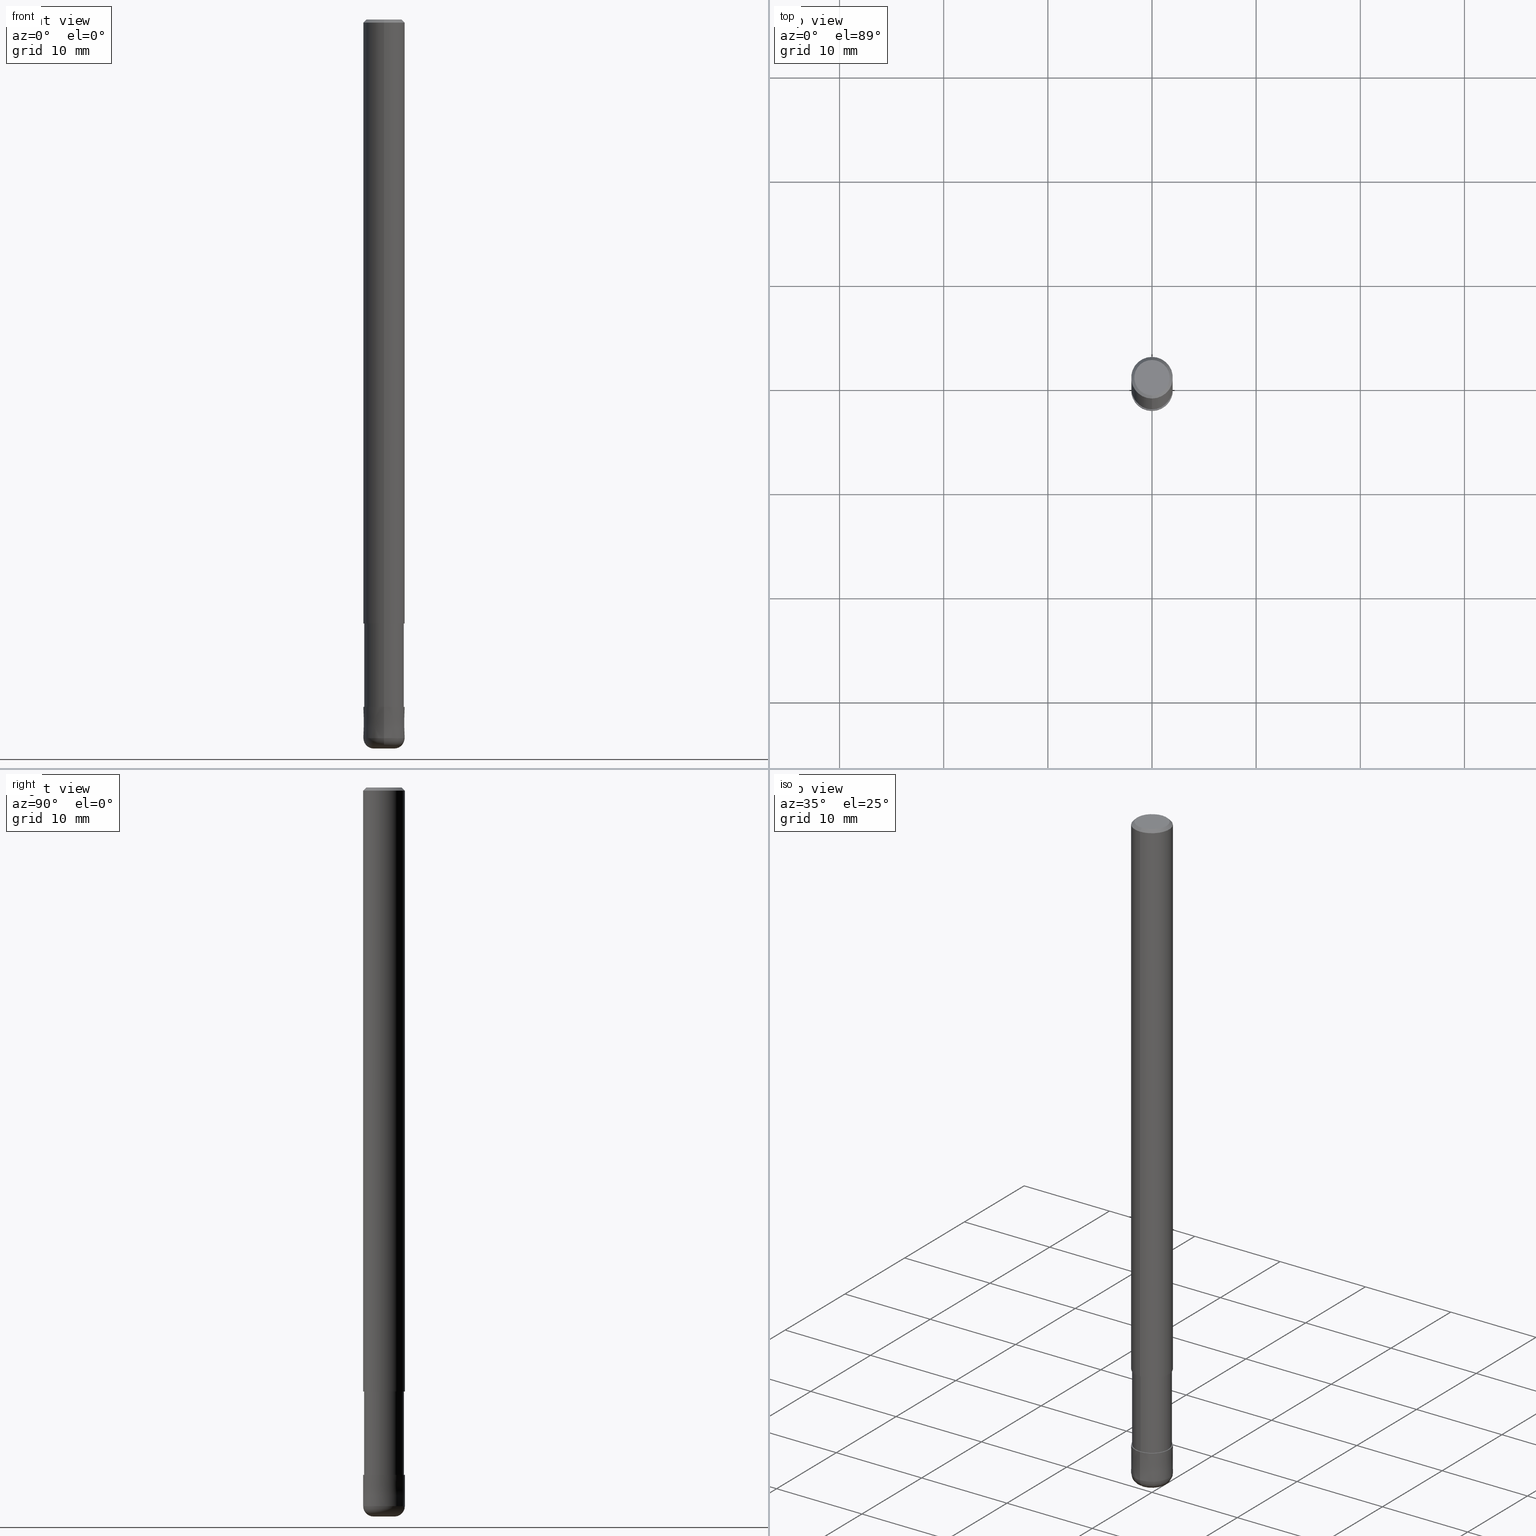
[diagram: canonical four-view strip — front | top / right | iso, engineering-drawing reading convention]
A machine part, canonical four-view strip (front | top / right | iso — engineering-drawing reading convention). The complete STEP part file that produces these views, byte-faithful:
ISO-10303-21;
HEADER;
FILE_DESCRIPTION(('no description'),'unknown implementation level');
FILE_NAME('HRRS4040-10-12-Huellk.stp','  ',('CIMSOURCE GmbH'),('CADClick - KiM GmbH - www.kimweb.de'),'unknown preprocess','ACIS','unknown authorization');
FILE_SCHEMA(('automotive_design'));
ENDSEC;
DATA;
#1=MECHANICAL_DESIGN_GEOMETRIC_PRESENTATION_REPRESENTATION(' ',(#14,#15,#16,#17,#18,#19,#20,#21,#22,#23,#24,#25,#26,#27,#28,#29,#30,#31,#32,#33,#34,#35,#36,#37,#38,#39,#40,#41,#42,#43,#44,#45,#46,#47,#48,#49,#50,#51,#52,#53,#54,#55,#56,#57,#58,#59,#60,#61,#62,#63,#64,#65,#66,#67,#68,#69,#70,#71,#72),#10);
#2=PRODUCT_DEFINITION_CONTEXT('',#73,'design');
#3=APPLICATION_PROTOCOL_DEFINITION('INTERNATIONAL STANDARD','automotive_design',1994,#73);
#4=PRODUCT_CATEGORY_RELATIONSHIP('NONE','NONE',#74,#75);
#5=SHAPE_DEFINITION_REPRESENTATION(#76,#77);
#6=PRODUCT_DEFINITION_CONTEXT('',#78,'design');
#7=APPLICATION_PROTOCOL_DEFINITION('INTERNATIONAL STANDARD','automotive_design',1994,#78);
#8=PRODUCT_CATEGORY_RELATIONSHIP('NONE','NONE',#79,#80);
#9=SHAPE_DEFINITION_REPRESENTATION(#81,#82);
#10= (GEOMETRIC_REPRESENTATION_CONTEXT(3)GLOBAL_UNCERTAINTY_ASSIGNED_CONTEXT((#85))GLOBAL_UNIT_ASSIGNED_CONTEXT((#87,#88,#89))REPRESENTATION_CONTEXT('NONE','WORKSPACE'));
#14=STYLED_ITEM('',(#91),#92);
#15=STYLED_ITEM('',(#93),#94);
#16=STYLED_ITEM('',(#95),#96);
#17=STYLED_ITEM('',(#97),#98);
#18=STYLED_ITEM('',(#99),#100);
#19=STYLED_ITEM('',(#101),#102);
#20=STYLED_ITEM('',(#103),#104);
#21=STYLED_ITEM('',(#105),#106);
#22=STYLED_ITEM('',(#107),#108);
#23=STYLED_ITEM('',(#109),#110);
#24=STYLED_ITEM('',(#111),#112);
#25=STYLED_ITEM('',(#113),#114);
#26=STYLED_ITEM('',(#115),#116);
#27=STYLED_ITEM('',(#117),#118);
#28=STYLED_ITEM('',(#119),#120);
#29=STYLED_ITEM('',(#121),#122);
#30=STYLED_ITEM('',(#123),#124);
#31=STYLED_ITEM('',(#125),#126);
#32=STYLED_ITEM('',(#127),#128);
#33=STYLED_ITEM('',(#129),#130);
#34=STYLED_ITEM('',(#131),#132);
#35=STYLED_ITEM('',(#133),#134);
#36=STYLED_ITEM('',(#135),#136);
#37=STYLED_ITEM('',(#137),#138);
#38=STYLED_ITEM('',(#139),#140);
#39=STYLED_ITEM('',(#141),#142);
#40=STYLED_ITEM('',(#143),#144);
#41=STYLED_ITEM('',(#145),#146);
#42=STYLED_ITEM('',(#147),#148);
#43=STYLED_ITEM('',(#149),#150);
#44=STYLED_ITEM('',(#151),#152);
#45=STYLED_ITEM('',(#153),#154);
#46=STYLED_ITEM('',(#155),#156);
#47=STYLED_ITEM('',(#157),#158);
#48=STYLED_ITEM('',(#159),#160);
#49=STYLED_ITEM('',(#161),#162);
#50=STYLED_ITEM('',(#163),#164);
#51=STYLED_ITEM('',(#165),#166);
#52=STYLED_ITEM('',(#167),#168);
#53=STYLED_ITEM('',(#169),#170);
#54=STYLED_ITEM('',(#171),#172);
#55=STYLED_ITEM('',(#173),#174);
#56=STYLED_ITEM('',(#175),#176);
#57=STYLED_ITEM('',(#177),#178);
#58=STYLED_ITEM('',(#179),#180);
#59=STYLED_ITEM('',(#181),#182);
#60=STYLED_ITEM('',(#183),#184);
#61=STYLED_ITEM('',(#185),#186);
#62=STYLED_ITEM('',(#187),#188);
#63=STYLED_ITEM('',(#189),#190);
#64=STYLED_ITEM('',(#191),#192);
#65=STYLED_ITEM('',(#193),#194);
#66=STYLED_ITEM('',(#195),#196);
#67=STYLED_ITEM('',(#197),#198);
#68=STYLED_ITEM('',(#199),#200);
#69=STYLED_ITEM('',(#201),#202);
#70=STYLED_ITEM('',(#203),#204);
#71=STYLED_ITEM('',(#205),#206);
#72=STYLED_ITEM('',(#207),#208);
#73=APPLICATION_CONTEXT(' ');
#74=PRODUCT_CATEGORY('part','NONE');
#75=PRODUCT_RELATED_PRODUCT_CATEGORY('detail',' ',(#209));
#76=PRODUCT_DEFINITION_SHAPE('NONE','NONE',#210);
#77=ADVANCED_BREP_SHAPE_REPRESENTATION('1',(#152,#211),#10);
#78=APPLICATION_CONTEXT(' ');
#79=PRODUCT_CATEGORY('part','NONE');
#80=PRODUCT_RELATED_PRODUCT_CATEGORY('detail',' ',(#212));
#81=PRODUCT_DEFINITION_SHAPE('NONE','NONE',#213);
#82=ADVANCED_BREP_SHAPE_REPRESENTATION('2',(#164,#214),#10);
#85=UNCERTAINTY_MEASURE_WITH_UNIT(LENGTH_MEASURE(1.0E-006),#87,'','');
#87= (CONVERSION_BASED_UNIT('MILLIMETRE',#217)LENGTH_UNIT()NAMED_UNIT(#220));
#88= (NAMED_UNIT(#222)PLANE_ANGLE_UNIT()SI_UNIT($,.RADIAN.));
#89= (NAMED_UNIT(#222)SOLID_ANGLE_UNIT()SI_UNIT($,.STERADIAN.));
#91=PRESENTATION_STYLE_ASSIGNMENT((#228));
#92=EDGE_CURVE('',#112,#106,#229,.T.);
#93=PRESENTATION_STYLE_ASSIGNMENT((#230));
#94=EDGE_CURVE('',#174,#104,#231,.T.);
#95=PRESENTATION_STYLE_ASSIGNMENT((#232));
#96=VERTEX_POINT('',#233);
#97=PRESENTATION_STYLE_ASSIGNMENT((#234));
#98=VERTEX_POINT('',#235);
#99=PRESENTATION_STYLE_ASSIGNMENT((#236));
#100=ADVANCED_FACE('',(#237),#238,.T.);
#101=PRESENTATION_STYLE_ASSIGNMENT((#239));
#102=EDGE_CURVE('',#106,#112,#240,.T.);
#103=PRESENTATION_STYLE_ASSIGNMENT((#241));
#104=VERTEX_POINT('',#242);
#105=PRESENTATION_STYLE_ASSIGNMENT((#243));
#106=VERTEX_POINT('',#244);
#107=PRESENTATION_STYLE_ASSIGNMENT((#245));
#108=ADVANCED_FACE('',(#246),#247,.T.);
#109=PRESENTATION_STYLE_ASSIGNMENT((#248));
#110=ADVANCED_FACE('',(#249),#250,.T.);
#111=PRESENTATION_STYLE_ASSIGNMENT((#251));
#112=VERTEX_POINT('',#252);
#113=PRESENTATION_STYLE_ASSIGNMENT((#253));
#114=ADVANCED_FACE('',(#254),#255,.T.);
#115=PRESENTATION_STYLE_ASSIGNMENT((#256));
#116=ADVANCED_FACE('',(#257),#258,.T.);
#117=PRESENTATION_STYLE_ASSIGNMENT((#259));
#118=ADVANCED_FACE('',(#260),#261,.T.);
#119=PRESENTATION_STYLE_ASSIGNMENT((#262));
#120=VERTEX_POINT('',#263);
#121=PRESENTATION_STYLE_ASSIGNMENT((#264));
#122=EDGE_CURVE('',#174,#180,#265,.T.);
#123=PRESENTATION_STYLE_ASSIGNMENT((#266));
#124=EDGE_CURVE('',#106,#130,#267,.T.);
#125=PRESENTATION_STYLE_ASSIGNMENT((#268));
#126=VERTEX_POINT('',#269);
#127=PRESENTATION_STYLE_ASSIGNMENT((#270));
#128=EDGE_CURVE('',#202,#130,#271,.T.);
#129=PRESENTATION_STYLE_ASSIGNMENT((#272));
#130=VERTEX_POINT('',#273);
#131=PRESENTATION_STYLE_ASSIGNMENT((#274));
#132=EDGE_CURVE('',#162,#202,#275,.T.);
#133=PRESENTATION_STYLE_ASSIGNMENT((#276));
#134=EDGE_CURVE('',#194,#120,#277,.T.);
#135=PRESENTATION_STYLE_ASSIGNMENT((#278));
#136=EDGE_CURVE('',#98,#96,#279,.T.);
#137=PRESENTATION_STYLE_ASSIGNMENT((#280));
#138=EDGE_CURVE('',#168,#174,#281,.T.);
#139=PRESENTATION_STYLE_ASSIGNMENT((#282));
#140=ADVANCED_FACE('',(#283),#284,.T.);
#141=PRESENTATION_STYLE_ASSIGNMENT((#285));
#142=EDGE_CURVE('',#194,#96,#286,.T.);
#143=PRESENTATION_STYLE_ASSIGNMENT((#287));
#144=EDGE_CURVE('',#198,#104,#288,.T.);
#145=PRESENTATION_STYLE_ASSIGNMENT((#289));
#146=EDGE_CURVE('',#104,#198,#290,.T.);
#147=PRESENTATION_STYLE_ASSIGNMENT((#291));
#148=EDGE_CURVE('',#96,#98,#292,.T.);
#149=PRESENTATION_STYLE_ASSIGNMENT((#293));
#150=EDGE_CURVE('',#180,#174,#294,.T.);
#151=PRESENTATION_STYLE_ASSIGNMENT((#295));
#152=MANIFOLD_SOLID_BREP('1',#296);
#153=PRESENTATION_STYLE_ASSIGNMENT((#297));
#154=EDGE_CURVE('',#198,#180,#298,.T.);
#155=PRESENTATION_STYLE_ASSIGNMENT((#299));
#156=EDGE_CURVE('',#188,#168,#300,.T.);
#157=PRESENTATION_STYLE_ASSIGNMENT((#301));
#158=ADVANCED_FACE('',(#302),#303,.T.);
#159=PRESENTATION_STYLE_ASSIGNMENT((#304));
#160=ADVANCED_FACE('',(#305),#306,.T.);
#161=PRESENTATION_STYLE_ASSIGNMENT((#307));
#162=VERTEX_POINT('',#308);
#163=PRESENTATION_STYLE_ASSIGNMENT((#309));
#164=MANIFOLD_SOLID_BREP('2',#310);
#165=PRESENTATION_STYLE_ASSIGNMENT((#311));
#166=EDGE_CURVE('',#180,#188,#312,.T.);
#167=PRESENTATION_STYLE_ASSIGNMENT((#313));
#168=VERTEX_POINT('',#314);
#169=PRESENTATION_STYLE_ASSIGNMENT((#315));
#170=ADVANCED_FACE('',(#316),#317,.T.);
#171=PRESENTATION_STYLE_ASSIGNMENT((#318));
#172=EDGE_CURVE('',#126,#112,#319,.T.);
#173=PRESENTATION_STYLE_ASSIGNMENT((#320));
#174=VERTEX_POINT('',#321);
#175=PRESENTATION_STYLE_ASSIGNMENT((#322));
#176=EDGE_CURVE('',#126,#162,#323,.T.);
#177=PRESENTATION_STYLE_ASSIGNMENT((#324));
#178=ADVANCED_FACE('',(#325),#326,.T.);
#179=PRESENTATION_STYLE_ASSIGNMENT((#327));
#180=VERTEX_POINT('',#328);
#181=PRESENTATION_STYLE_ASSIGNMENT((#329));
#182=EDGE_CURVE('',#126,#130,#330,.T.);
#183=PRESENTATION_STYLE_ASSIGNMENT((#331));
#184=EDGE_CURVE('',#202,#162,#332,.T.);
#185=PRESENTATION_STYLE_ASSIGNMENT((#333));
#186=ADVANCED_FACE('',(#334,#335),#336,.T.);
#187=PRESENTATION_STYLE_ASSIGNMENT((#337));
#188=VERTEX_POINT('',#338);
#189=PRESENTATION_STYLE_ASSIGNMENT((#339));
#190=EDGE_CURVE('',#130,#126,#340,.T.);
#191=PRESENTATION_STYLE_ASSIGNMENT((#341));
#192=ADVANCED_FACE('',(#342),#343,.T.);
#193=PRESENTATION_STYLE_ASSIGNMENT((#344));
#194=VERTEX_POINT('',#345);
#195=PRESENTATION_STYLE_ASSIGNMENT((#346));
#196=EDGE_CURVE('',#120,#194,#347,.T.);
#197=PRESENTATION_STYLE_ASSIGNMENT((#348));
#198=VERTEX_POINT('',#349);
#199=PRESENTATION_STYLE_ASSIGNMENT((#350));
#200=ADVANCED_FACE('',(#351),#352,.T.);
#201=PRESENTATION_STYLE_ASSIGNMENT((#353));
#202=VERTEX_POINT('',#354);
#203=PRESENTATION_STYLE_ASSIGNMENT((#355));
#204=ADVANCED_FACE('',(#356),#357,.T.);
#205=PRESENTATION_STYLE_ASSIGNMENT((#358));
#206=EDGE_CURVE('',#98,#120,#359,.T.);
#207=PRESENTATION_STYLE_ASSIGNMENT((#360));
#208=EDGE_CURVE('',#168,#188,#361,.T.);
#209=PRODUCT('1','1','PART-1-DESC',(#362));
#210=PRODUCT_DEFINITION('NONE','NONE',#363,#2);
#211=AXIS2_PLACEMENT_3D('',#364,#365,#366);
#212=PRODUCT('2','2','PART-2-DESC',(#367));
#213=PRODUCT_DEFINITION('NONE','NONE',#368,#6);
#214=AXIS2_PLACEMENT_3D('',#369,#370,#371);
#217=LENGTH_MEASURE_WITH_UNIT(LENGTH_MEASURE(1.0),#372);
#220=DIMENSIONAL_EXPONENTS(1.0,0.0,0.0,0.0,0.0,0.0,0.0);
#222=DIMENSIONAL_EXPONENTS(0.0,0.0,0.0,0.0,0.0,0.0,0.0);
#228=CURVE_STYLE('',#373,POSITIVE_LENGTH_MEASURE(1.0E-006),#374);
#229=CIRCLE('',#375,1.9999);
#230=CURVE_STYLE('',#376,POSITIVE_LENGTH_MEASURE(1.0E-006),#377);
#231=LINE('',#378,#379);
#232=POINT_STYLE(' ',#380,POSITIVE_LENGTH_MEASURE(1.0E-006),#381);
#233=CARTESIAN_POINT('',(0.0,1.90995,-66.0));
#234=POINT_STYLE(' ',#382,POSITIVE_LENGTH_MEASURE(1.0E-006),#383);
#235=CARTESIAN_POINT('',(2.33893690548305E-016,-1.90995,-66.0));
#236=SURFACE_STYLE_USAGE(.BOTH.,#384);
#237=FACE_OUTER_BOUND('',#385,.T.);
#238=CYLINDRICAL_SURFACE('',#386,2.0);
#239=CURVE_STYLE('',#387,POSITIVE_LENGTH_MEASURE(1.0E-006),#388);
#240=CIRCLE('',#389,1.9999);
#241=POINT_STYLE(' ',#390,POSITIVE_LENGTH_MEASURE(1.0E-006),#391);
#242=CARTESIAN_POINT('',(2.08183080149804E-016,-1.7,0.0));
#243=POINT_STYLE(' ',#392,POSITIVE_LENGTH_MEASURE(1.0E-006),#393);
#244=CARTESIAN_POINT('',(0.0,1.9999,-66.0));
#245=SURFACE_STYLE_USAGE(.BOTH.,#394);
#246=FACE_OUTER_BOUND('',#395,.T.);
#247=CONICAL_SURFACE('',#396,1.85,0.785398163397453);
#248=SURFACE_STYLE_USAGE(.BOTH.,#397);
#249=FACE_OUTER_BOUND('',#398,.T.);
#250=CYLINDRICAL_SURFACE('',#399,1.90995);
#251=POINT_STYLE(' ',#400,POSITIVE_LENGTH_MEASURE(1.0E-006),#401);
#252=CARTESIAN_POINT('',(2.44909024700937E-016,-1.9999,-66.0));
#253=SURFACE_STYLE_USAGE(.BOTH.,#402);
#254=FACE_OUTER_BOUND('',#403,.T.);
#255=CONICAL_SURFACE('',#404,1.85,0.785398163397453);
#256=SURFACE_STYLE_USAGE(.BOTH.,#405);
#257=FACE_OUTER_BOUND('',#406,.T.);
#258=PLANE('',#407);
#259=SURFACE_STYLE_USAGE(.BOTH.,#408);
#260=FACE_OUTER_BOUND('',#409,.T.);
#261=CYLINDRICAL_SURFACE('',#410,1.90995);
#262=POINT_STYLE(' ',#411,POSITIVE_LENGTH_MEASURE(1.0E-006),#412);
#263=CARTESIAN_POINT('',(2.33893690548305E-016,-1.90995,-58.0));
#264=CURVE_STYLE('',#413,POSITIVE_LENGTH_MEASURE(1.0E-006),#414);
#265=CIRCLE('',#415,2.0);
#266=CURVE_STYLE('',#416,POSITIVE_LENGTH_MEASURE(1.0E-006),#417);
#267=LINE('',#418,#419);
#268=POINT_STYLE(' ',#420,POSITIVE_LENGTH_MEASURE(1.0E-006),#421);
#269=CARTESIAN_POINT('',(2.44921270764475E-016,-2.0,-69.0));
#270=CURVE_STYLE('',#422,POSITIVE_LENGTH_MEASURE(1.0E-006),#423);
#271=CIRCLE('',#424,1.0);
#272=POINT_STYLE(' ',#425,POSITIVE_LENGTH_MEASURE(1.0E-006),#426);
#273=CARTESIAN_POINT('',(0.0,2.0,-69.0));
#274=CURVE_STYLE('',#427,POSITIVE_LENGTH_MEASURE(1.0E-006),#428);
#275=CIRCLE('',#429,1.0);
#276=CURVE_STYLE('',#430,POSITIVE_LENGTH_MEASURE(1.0E-006),#431);
#277=CIRCLE('',#432,1.90995);
#278=CURVE_STYLE('',#433,POSITIVE_LENGTH_MEASURE(1.0E-006),#434);
#279=CIRCLE('',#435,1.90995);
#280=CURVE_STYLE('',#436,POSITIVE_LENGTH_MEASURE(1.0E-006),#437);
#281=LINE('',#438,#439);
#282=SURFACE_STYLE_USAGE(.BOTH.,#440);
#283=FACE_OUTER_BOUND('',#441,.T.);
#284=PLANE('',#442);
#285=CURVE_STYLE('',#443,POSITIVE_LENGTH_MEASURE(1.0E-006),#444);
#286=LINE('',#445,#446);
#287=CURVE_STYLE('',#447,POSITIVE_LENGTH_MEASURE(1.0E-006),#448);
#288=CIRCLE('',#449,1.7);
#289=CURVE_STYLE('',#450,POSITIVE_LENGTH_MEASURE(1.0E-006),#451);
#290=CIRCLE('',#452,1.7);
#291=CURVE_STYLE('',#453,POSITIVE_LENGTH_MEASURE(1.0E-006),#454);
#292=CIRCLE('',#455,1.90995);
#293=CURVE_STYLE('',#456,POSITIVE_LENGTH_MEASURE(1.0E-006),#457);
#294=CIRCLE('',#458,2.0);
#295=SURFACE_STYLE_USAGE(.BOTH.,#459);
#296=CLOSED_SHELL('',(#118,#100,#108,#186,#116,#114,#178,#110,#192));
#297=CURVE_STYLE('',#460,POSITIVE_LENGTH_MEASURE(1.0E-006),#461);
#298=LINE('',#462,#463);
#299=CURVE_STYLE('',#464,POSITIVE_LENGTH_MEASURE(1.0E-006),#465);
#300=CIRCLE('',#466,2.0);
#301=SURFACE_STYLE_USAGE(.BOTH.,#467);
#302=FACE_OUTER_BOUND('',#468,.T.);
#303=TOROIDAL_SURFACE('',#469,0.999999999999999,1.0);
#304=SURFACE_STYLE_USAGE(.BOTH.,#470);
#305=FACE_OUTER_BOUND('',#471,.T.);
#306=PLANE('',#472);
#307=POINT_STYLE(' ',#473,POSITIVE_LENGTH_MEASURE(1.0E-006),#474);
#308=CARTESIAN_POINT('',(1.22460635382238E-016,-1.0,-70.0));
#309=SURFACE_STYLE_USAGE(.BOTH.,#475);
#310=CLOSED_SHELL('',(#158,#170,#160,#200,#204,#140));
#311=CURVE_STYLE('',#476,POSITIVE_LENGTH_MEASURE(1.0E-006),#477);
#312=LINE('',#478,#479);
#313=POINT_STYLE(' ',#480,POSITIVE_LENGTH_MEASURE(1.0E-006),#481);
#314=CARTESIAN_POINT('',(2.44921270764475E-016,-2.0,-58.0));
#315=SURFACE_STYLE_USAGE(.BOTH.,#482);
#316=FACE_OUTER_BOUND('',#483,.T.);
#317=CONICAL_SURFACE('',#484,1.99995,3.3333333320984E-005);
#318=CURVE_STYLE('',#485,POSITIVE_LENGTH_MEASURE(1.0E-006),#486);
#319=LINE('',#487,#488);
#320=POINT_STYLE(' ',#489,POSITIVE_LENGTH_MEASURE(1.0E-006),#490);
#321=CARTESIAN_POINT('',(2.44921270764475E-016,-2.0,-0.299999999999997));
#322=CURVE_STYLE('',#491,POSITIVE_LENGTH_MEASURE(1.0E-006),#492);
#323=CIRCLE('',#493,1.0);
#324=SURFACE_STYLE_USAGE(.BOTH.,#494);
#325=FACE_OUTER_BOUND('',#495,.T.);
#326=CYLINDRICAL_SURFACE('',#496,2.0);
#327=POINT_STYLE(' ',#497,POSITIVE_LENGTH_MEASURE(1.0E-006),#498);
#328=CARTESIAN_POINT('',(0.0,2.0,-0.299999999999997));
#329=CURVE_STYLE('',#499,POSITIVE_LENGTH_MEASURE(1.0E-006),#500);
#330=CIRCLE('',#501,2.0);
#331=CURVE_STYLE('',#502,POSITIVE_LENGTH_MEASURE(1.0E-006),#503);
#332=CIRCLE('',#504,1.0);
#333=SURFACE_STYLE_USAGE(.BOTH.,#505);
#334=FACE_OUTER_BOUND('',#506,.T.);
#335=FACE_BOUND('',#507,.T.);
#336=PLANE('',#508);
#337=POINT_STYLE(' ',#509,POSITIVE_LENGTH_MEASURE(1.0E-006),#510);
#338=CARTESIAN_POINT('',(0.0,2.0,-58.0));
#339=CURVE_STYLE('',#511,POSITIVE_LENGTH_MEASURE(1.0E-006),#512);
#340=CIRCLE('',#513,2.0);
#341=SURFACE_STYLE_USAGE(.BOTH.,#514);
#342=FACE_OUTER_BOUND('',#515,.T.);
#343=PLANE('',#516);
#344=POINT_STYLE(' ',#517,POSITIVE_LENGTH_MEASURE(1.0E-006),#518);
#345=CARTESIAN_POINT('',(0.0,1.90995,-58.0));
#346=CURVE_STYLE('',#519,POSITIVE_LENGTH_MEASURE(1.0E-006),#520);
#347=CIRCLE('',#521,1.90995);
#348=POINT_STYLE(' ',#522,POSITIVE_LENGTH_MEASURE(1.0E-006),#523);
#349=CARTESIAN_POINT('',(0.0,1.7,0.0));
#350=SURFACE_STYLE_USAGE(.BOTH.,#524);
#351=FACE_OUTER_BOUND('',#525,.T.);
#352=CONICAL_SURFACE('',#526,1.99995,3.3333333320984E-005);
#353=POINT_STYLE(' ',#527,POSITIVE_LENGTH_MEASURE(1.0E-006),#528);
#354=CARTESIAN_POINT('',(0.0,1.0,-70.0));
#355=SURFACE_STYLE_USAGE(.BOTH.,#529);
#356=FACE_OUTER_BOUND('',#530,.T.);
#357=TOROIDAL_SURFACE('',#531,0.999999999999999,1.0);
#358=CURVE_STYLE('',#532,POSITIVE_LENGTH_MEASURE(1.0E-006),#533);
#359=LINE('',#534,#535);
#360=CURVE_STYLE('',#536,POSITIVE_LENGTH_MEASURE(1.0E-006),#537);
#361=CIRCLE('',#538,2.0);
#362=PRODUCT_CONTEXT('',#73,'mechanical');
#363=PRODUCT_DEFINITION_FORMATION_WITH_SPECIFIED_SOURCE(' ','NONE',#209,.NOT_KNOWN.);
#364=CARTESIAN_POINT('',(0.0,0.0,0.0));
#365=DIRECTION('',(0.0,0.0,1.0));
#366=DIRECTION('',(1.0,0.0,0.0));
#367=PRODUCT_CONTEXT('',#78,'mechanical');
#368=PRODUCT_DEFINITION_FORMATION_WITH_SPECIFIED_SOURCE(' ','NONE',#212,.NOT_KNOWN.);
#369=CARTESIAN_POINT('',(0.0,0.0,0.0));
#370=DIRECTION('',(0.0,0.0,1.0));
#371=DIRECTION('',(1.0,0.0,0.0));
#372= (NAMED_UNIT(#220)LENGTH_UNIT()SI_UNIT(.MILLI.,.METRE.));
#373=DRAUGHTING_PRE_DEFINED_CURVE_FONT('continuous');
#374=COLOUR_RGB('',0.800000011920929,0.800000011920929,0.800000011920929);
#375=AXIS2_PLACEMENT_3D('',#540,#541,#542);
#376=DRAUGHTING_PRE_DEFINED_CURVE_FONT('continuous');
#377=COLOUR_RGB('',0.498039215803146,0.498039215803146,0.498039215803146);
#378=CARTESIAN_POINT('',(2.2655217545714E-016,-1.85,-0.149999999999999));
#379=VECTOR('',#543,1.0);
#380=PRE_DEFINED_MARKER('');
#381=COLOUR_RGB('',0.498039215803146,0.498039215803146,0.498039215803146);
#382=PRE_DEFINED_MARKER('');
#383=COLOUR_RGB('',0.498039215803146,0.498039215803146,0.498039215803146);
#384=SURFACE_SIDE_STYLE('',(#544));
#385=EDGE_LOOP('',(#545,#546,#547,#548));
#386=AXIS2_PLACEMENT_3D('',#549,#550,#551);
#387=DRAUGHTING_PRE_DEFINED_CURVE_FONT('continuous');
#388=COLOUR_RGB('',0.800000011920929,0.800000011920929,0.800000011920929);
#389=AXIS2_PLACEMENT_3D('',#552,#553,#554);
#390=PRE_DEFINED_MARKER('');
#391=COLOUR_RGB('',0.498039215803146,0.498039215803146,0.498039215803146);
#392=PRE_DEFINED_MARKER('');
#393=COLOUR_RGB('',0.800000011920929,0.800000011920929,0.800000011920929);
#394=SURFACE_SIDE_STYLE('',(#555));
#395=EDGE_LOOP('',(#556,#557,#558,#559));
#396=AXIS2_PLACEMENT_3D('',#560,#561,#562);
#397=SURFACE_SIDE_STYLE('',(#563));
#398=EDGE_LOOP('',(#564,#565,#566,#567));
#399=AXIS2_PLACEMENT_3D('',#568,#569,#570);
#400=PRE_DEFINED_MARKER('');
#401=COLOUR_RGB('',0.800000011920929,0.800000011920929,0.800000011920929);
#402=SURFACE_SIDE_STYLE('',(#571));
#403=EDGE_LOOP('',(#572,#573,#574,#575));
#404=AXIS2_PLACEMENT_3D('',#576,#577,#578);
#405=SURFACE_SIDE_STYLE('',(#579));
#406=EDGE_LOOP('',(#580,#581));
#407=AXIS2_PLACEMENT_3D('',#582,#583,#584);
#408=SURFACE_SIDE_STYLE('',(#585));
#409=EDGE_LOOP('',(#586,#587,#588,#589));
#410=AXIS2_PLACEMENT_3D('',#590,#591,#592);
#411=PRE_DEFINED_MARKER('');
#412=COLOUR_RGB('',0.498039215803146,0.498039215803146,0.498039215803146);
#413=DRAUGHTING_PRE_DEFINED_CURVE_FONT('continuous');
#414=COLOUR_RGB('',0.498039215803146,0.498039215803146,0.498039215803146);
#415=AXIS2_PLACEMENT_3D('',#593,#594,#595);
#416=DRAUGHTING_PRE_DEFINED_CURVE_FONT('continuous');
#417=COLOUR_RGB('',0.800000011920929,0.800000011920929,0.800000011920929);
#418=CARTESIAN_POINT('',(-2.44915147732706E-016,1.99995,-67.5));
#419=VECTOR('',#596,1.0);
#420=PRE_DEFINED_MARKER('');
#421=COLOUR_RGB('',0.800000011920929,0.800000011920929,0.800000011920929);
#422=DRAUGHTING_PRE_DEFINED_CURVE_FONT('continuous');
#423=COLOUR_RGB('',0.800000011920929,0.800000011920929,0.800000011920929);
#424=AXIS2_PLACEMENT_3D('',#597,#598,#599);
#425=PRE_DEFINED_MARKER('');
#426=COLOUR_RGB('',0.800000011920929,0.800000011920929,0.800000011920929);
#427=DRAUGHTING_PRE_DEFINED_CURVE_FONT('continuous');
#428=COLOUR_RGB('',0.800000011920929,0.800000011920929,0.800000011920929);
#429=AXIS2_PLACEMENT_3D('',#600,#601,#602);
#430=DRAUGHTING_PRE_DEFINED_CURVE_FONT('continuous');
#431=COLOUR_RGB('',0.498039215803146,0.498039215803146,0.498039215803146);
#432=AXIS2_PLACEMENT_3D('',#603,#604,#605);
#433=DRAUGHTING_PRE_DEFINED_CURVE_FONT('continuous');
#434=COLOUR_RGB('',0.498039215803146,0.498039215803146,0.498039215803146);
#435=AXIS2_PLACEMENT_3D('',#606,#607,#608);
#436=DRAUGHTING_PRE_DEFINED_CURVE_FONT('continuous');
#437=COLOUR_RGB('',0.498039215803146,0.498039215803146,0.498039215803146);
#438=CARTESIAN_POINT('',(2.44921270764475E-016,-2.0,-29.15));
#439=VECTOR('',#609,1.0);
#440=SURFACE_SIDE_STYLE('',(#610));
#441=EDGE_LOOP('',(#611,#612));
#442=AXIS2_PLACEMENT_3D('',#613,#614,#615);
#443=DRAUGHTING_PRE_DEFINED_CURVE_FONT('continuous');
#444=COLOUR_RGB('',0.498039215803146,0.498039215803146,0.498039215803146);
#445=CARTESIAN_POINT('',(-2.33893690548305E-016,1.90995,-62.0));
#446=VECTOR('',#616,1.0);
#447=DRAUGHTING_PRE_DEFINED_CURVE_FONT('continuous');
#448=COLOUR_RGB('',0.498039215803146,0.498039215803146,0.498039215803146);
#449=AXIS2_PLACEMENT_3D('',#617,#618,#619);
#450=DRAUGHTING_PRE_DEFINED_CURVE_FONT('continuous');
#451=COLOUR_RGB('',0.498039215803146,0.498039215803146,0.498039215803146);
#452=AXIS2_PLACEMENT_3D('',#620,#621,#622);
#453=DRAUGHTING_PRE_DEFINED_CURVE_FONT('continuous');
#454=COLOUR_RGB('',0.498039215803146,0.498039215803146,0.498039215803146);
#455=AXIS2_PLACEMENT_3D('',#623,#624,#625);
#456=DRAUGHTING_PRE_DEFINED_CURVE_FONT('continuous');
#457=COLOUR_RGB('',0.498039215803146,0.498039215803146,0.498039215803146);
#458=AXIS2_PLACEMENT_3D('',#626,#627,#628);
#459=SURFACE_SIDE_STYLE('',(#629));
#460=DRAUGHTING_PRE_DEFINED_CURVE_FONT('continuous');
#461=COLOUR_RGB('',0.498039215803146,0.498039215803146,0.498039215803146);
#462=CARTESIAN_POINT('',(-2.2655217545714E-016,1.85,-0.149999999999999));
#463=VECTOR('',#630,1.0);
#464=DRAUGHTING_PRE_DEFINED_CURVE_FONT('continuous');
#465=COLOUR_RGB('',0.498039215803146,0.498039215803146,0.498039215803146);
#466=AXIS2_PLACEMENT_3D('',#631,#632,#633);
#467=SURFACE_SIDE_STYLE('',(#634));
#468=EDGE_LOOP('',(#635,#636,#637,#638));
#469=AXIS2_PLACEMENT_3D('',#639,#640,#641);
#470=SURFACE_SIDE_STYLE('',(#642));
#471=EDGE_LOOP('',(#643,#644));
#472=AXIS2_PLACEMENT_3D('',#645,#646,#647);
#473=PRE_DEFINED_MARKER('');
#474=COLOUR_RGB('',0.800000011920929,0.800000011920929,0.800000011920929);
#475=SURFACE_SIDE_STYLE('',(#648));
#476=DRAUGHTING_PRE_DEFINED_CURVE_FONT('continuous');
#477=COLOUR_RGB('',0.498039215803146,0.498039215803146,0.498039215803146);
#478=CARTESIAN_POINT('',(-2.44921270764475E-016,2.0,-29.15));
#479=VECTOR('',#649,1.0);
#480=PRE_DEFINED_MARKER('');
#481=COLOUR_RGB('',0.498039215803146,0.498039215803146,0.498039215803146);
#482=SURFACE_SIDE_STYLE('',(#650));
#483=EDGE_LOOP('',(#651,#652,#653,#654));
#484=AXIS2_PLACEMENT_3D('',#655,#656,#657);
#485=DRAUGHTING_PRE_DEFINED_CURVE_FONT('continuous');
#486=COLOUR_RGB('',0.800000011920929,0.800000011920929,0.800000011920929);
#487=CARTESIAN_POINT('',(2.44915147732706E-016,-1.99995,-67.5));
#488=VECTOR('',#658,1.0);
#489=PRE_DEFINED_MARKER('');
#490=COLOUR_RGB('',0.498039215803146,0.498039215803146,0.498039215803146);
#491=DRAUGHTING_PRE_DEFINED_CURVE_FONT('continuous');
#492=COLOUR_RGB('',0.800000011920929,0.800000011920929,0.800000011920929);
#493=AXIS2_PLACEMENT_3D('',#659,#660,#661);
#494=SURFACE_SIDE_STYLE('',(#662));
#495=EDGE_LOOP('',(#663,#664,#665,#666));
#496=AXIS2_PLACEMENT_3D('',#667,#668,#669);
#497=PRE_DEFINED_MARKER('');
#498=COLOUR_RGB('',0.498039215803146,0.498039215803146,0.498039215803146);
#499=DRAUGHTING_PRE_DEFINED_CURVE_FONT('continuous');
#500=COLOUR_RGB('',0.800000011920929,0.800000011920929,0.800000011920929);
#501=AXIS2_PLACEMENT_3D('',#670,#671,#672);
#502=DRAUGHTING_PRE_DEFINED_CURVE_FONT('continuous');
#503=COLOUR_RGB('',0.800000011920929,0.800000011920929,0.800000011920929);
#504=AXIS2_PLACEMENT_3D('',#673,#674,#675);
#505=SURFACE_SIDE_STYLE('',(#676));
#506=EDGE_LOOP('',(#677,#678));
#507=EDGE_LOOP('',(#679,#680));
#508=AXIS2_PLACEMENT_3D('',#681,#682,#683);
#509=PRE_DEFINED_MARKER('');
#510=COLOUR_RGB('',0.498039215803146,0.498039215803146,0.498039215803146);
#511=DRAUGHTING_PRE_DEFINED_CURVE_FONT('continuous');
#512=COLOUR_RGB('',0.800000011920929,0.800000011920929,0.800000011920929);
#513=AXIS2_PLACEMENT_3D('',#684,#685,#686);
#514=SURFACE_SIDE_STYLE('',(#687));
#515=EDGE_LOOP('',(#688,#689));
#516=AXIS2_PLACEMENT_3D('',#690,#691,#692);
#517=PRE_DEFINED_MARKER('');
#518=COLOUR_RGB('',0.498039215803146,0.498039215803146,0.498039215803146);
#519=DRAUGHTING_PRE_DEFINED_CURVE_FONT('continuous');
#520=COLOUR_RGB('',0.498039215803146,0.498039215803146,0.498039215803146);
#521=AXIS2_PLACEMENT_3D('',#693,#694,#695);
#522=PRE_DEFINED_MARKER('');
#523=COLOUR_RGB('',0.498039215803146,0.498039215803146,0.498039215803146);
#524=SURFACE_SIDE_STYLE('',(#696));
#525=EDGE_LOOP('',(#697,#698,#699,#700));
#526=AXIS2_PLACEMENT_3D('',#701,#702,#703);
#527=PRE_DEFINED_MARKER('');
#528=COLOUR_RGB('',0.800000011920929,0.800000011920929,0.800000011920929);
#529=SURFACE_SIDE_STYLE('',(#704));
#530=EDGE_LOOP('',(#705,#706,#707,#708));
#531=AXIS2_PLACEMENT_3D('',#709,#710,#711);
#532=DRAUGHTING_PRE_DEFINED_CURVE_FONT('continuous');
#533=COLOUR_RGB('',0.498039215803146,0.498039215803146,0.498039215803146);
#534=CARTESIAN_POINT('',(2.33893690548305E-016,-1.90995,-62.0));
#535=VECTOR('',#712,1.0);
#536=DRAUGHTING_PRE_DEFINED_CURVE_FONT('continuous');
#537=COLOUR_RGB('',0.498039215803146,0.498039215803146,0.498039215803146);
#538=AXIS2_PLACEMENT_3D('',#713,#714,#715);
#540=CARTESIAN_POINT('',(0.0,0.0,-66.0));
#541=DIRECTION('',(0.0,0.0,-1.0));
#542=DIRECTION('',(0.0,1.0,0.0));
#543=DIRECTION('',(-8.6592745707194E-017,0.707106781186551,0.707106781186544));
#544=SURFACE_STYLE_FILL_AREA(#716);
#545=ORIENTED_EDGE('',*,*,#166,.F.);
#546=ORIENTED_EDGE('',*,*,#150,.T.);
#547=ORIENTED_EDGE('',*,*,#138,.F.);
#548=ORIENTED_EDGE('',*,*,#156,.F.);
#549=CARTESIAN_POINT('',(0.0,0.0,-29.15));
#550=DIRECTION('',(-0.0,-0.0,1.0));
#551=DIRECTION('',(0.0,1.0,0.0));
#552=CARTESIAN_POINT('',(0.0,0.0,-66.0));
#553=DIRECTION('',(0.0,0.0,-1.0));
#554=DIRECTION('',(0.0,1.0,0.0));
#555=SURFACE_STYLE_FILL_AREA(#717);
#556=ORIENTED_EDGE('',*,*,#154,.F.);
#557=ORIENTED_EDGE('',*,*,#144,.T.);
#558=ORIENTED_EDGE('',*,*,#94,.F.);
#559=ORIENTED_EDGE('',*,*,#150,.F.);
#560=CARTESIAN_POINT('',(0.0,0.0,-0.149999999999999));
#561=DIRECTION('',(0.0,-0.0,-1.0));
#562=DIRECTION('',(0.0,1.0,0.0));
#563=SURFACE_STYLE_FILL_AREA(#718);
#564=ORIENTED_EDGE('',*,*,#142,.T.);
#565=ORIENTED_EDGE('',*,*,#136,.F.);
#566=ORIENTED_EDGE('',*,*,#206,.T.);
#567=ORIENTED_EDGE('',*,*,#196,.T.);
#568=CARTESIAN_POINT('',(0.0,0.0,-62.0));
#569=DIRECTION('',(-0.0,-0.0,1.0));
#570=DIRECTION('',(0.0,1.0,0.0));
#571=SURFACE_STYLE_FILL_AREA(#719);
#572=ORIENTED_EDGE('',*,*,#154,.T.);
#573=ORIENTED_EDGE('',*,*,#122,.F.);
#574=ORIENTED_EDGE('',*,*,#94,.T.);
#575=ORIENTED_EDGE('',*,*,#146,.T.);
#576=CARTESIAN_POINT('',(0.0,0.0,-0.149999999999999));
#577=DIRECTION('',(0.0,-0.0,-1.0));
#578=DIRECTION('',(0.0,1.0,0.0));
#579=SURFACE_STYLE_FILL_AREA(#720);
#580=ORIENTED_EDGE('',*,*,#144,.F.);
#581=ORIENTED_EDGE('',*,*,#146,.F.);
#582=CARTESIAN_POINT('',(0.0,0.85,0.0));
#583=DIRECTION('',(-0.0,0.0,1.0));
#584=DIRECTION('',(0.0,-1.0,0.0));
#585=SURFACE_STYLE_FILL_AREA(#721);
#586=ORIENTED_EDGE('',*,*,#142,.F.);
#587=ORIENTED_EDGE('',*,*,#134,.T.);
#588=ORIENTED_EDGE('',*,*,#206,.F.);
#589=ORIENTED_EDGE('',*,*,#148,.F.);
#590=CARTESIAN_POINT('',(0.0,0.0,-62.0));
#591=DIRECTION('',(-0.0,-0.0,1.0));
#592=DIRECTION('',(0.0,1.0,0.0));
#593=CARTESIAN_POINT('',(0.0,0.0,-0.299999999999997));
#594=DIRECTION('',(0.0,0.0,-1.0));
#595=DIRECTION('',(0.0,1.0,0.0));
#596=DIRECTION('',(-4.08202117713969E-021,3.33333333148111E-005,-0.999999999444445));
#597=CARTESIAN_POINT('',(-1.22460635382238E-016,0.999999999999999,-69.0));
#598=DIRECTION('',(1.0,1.22460635382238E-016,0.0));
#599=DIRECTION('',(-1.22460635382238E-016,1.0,0.0));
#600=CARTESIAN_POINT('',(0.0,0.0,-70.0));
#601=DIRECTION('',(0.0,0.0,-1.0));
#602=DIRECTION('',(0.0,1.0,0.0));
#603=CARTESIAN_POINT('',(0.0,0.0,-58.0));
#604=DIRECTION('',(0.0,0.0,-1.0));
#605=DIRECTION('',(0.0,1.0,0.0));
#606=CARTESIAN_POINT('',(0.0,0.0,-66.0));
#607=DIRECTION('',(0.0,0.0,-1.0));
#608=DIRECTION('',(0.0,1.0,0.0));
#609=DIRECTION('',(-0.0,-0.0,1.0));
#610=SURFACE_STYLE_FILL_AREA(#722);
#611=ORIENTED_EDGE('',*,*,#184,.T.);
#612=ORIENTED_EDGE('',*,*,#132,.T.);
#613=CARTESIAN_POINT('',(0.0,0.5,-70.0));
#614=DIRECTION('',(0.0,0.0,-1.0));
#615=DIRECTION('',(0.0,1.0,0.0));
#616=DIRECTION('',(0.0,0.0,-1.0));
#617=CARTESIAN_POINT('',(0.0,0.0,0.0));
#618=DIRECTION('',(0.0,0.0,-1.0));
#619=DIRECTION('',(0.0,1.0,0.0));
#620=CARTESIAN_POINT('',(0.0,0.0,0.0));
#621=DIRECTION('',(0.0,0.0,-1.0));
#622=DIRECTION('',(0.0,1.0,0.0));
#623=CARTESIAN_POINT('',(0.0,0.0,-66.0));
#624=DIRECTION('',(0.0,0.0,-1.0));
#625=DIRECTION('',(0.0,1.0,0.0));
#626=CARTESIAN_POINT('',(0.0,0.0,-0.299999999999997));
#627=DIRECTION('',(0.0,0.0,-1.0));
#628=DIRECTION('',(0.0,1.0,0.0));
#629=SURFACE_STYLE_FILL_AREA(#723);
#630=DIRECTION('',(-8.6592745707194E-017,0.707106781186551,-0.707106781186544));
#631=CARTESIAN_POINT('',(0.0,0.0,-58.0));
#632=DIRECTION('',(0.0,0.0,-1.0));
#633=DIRECTION('',(0.0,1.0,0.0));
#634=SURFACE_STYLE_FILL_AREA(#724);
#635=ORIENTED_EDGE('',*,*,#176,.F.);
#636=ORIENTED_EDGE('',*,*,#182,.T.);
#637=ORIENTED_EDGE('',*,*,#128,.F.);
#638=ORIENTED_EDGE('',*,*,#132,.F.);
#639=CARTESIAN_POINT('',(0.0,0.0,-69.0));
#640=DIRECTION('',(0.0,0.0,-1.0));
#641=DIRECTION('',(0.0,-1.0,0.0));
#642=SURFACE_STYLE_FILL_AREA(#725);
#643=ORIENTED_EDGE('',*,*,#102,.F.);
#644=ORIENTED_EDGE('',*,*,#92,.F.);
#645=CARTESIAN_POINT('',(0.0,0.99995,-66.0));
#646=DIRECTION('',(-0.0,0.0,1.0));
#647=DIRECTION('',(0.0,-1.0,0.0));
#648=SURFACE_STYLE_FILL_AREA(#726);
#649=DIRECTION('',(0.0,0.0,-1.0));
#650=SURFACE_STYLE_FILL_AREA(#727);
#651=ORIENTED_EDGE('',*,*,#124,.F.);
#652=ORIENTED_EDGE('',*,*,#102,.T.);
#653=ORIENTED_EDGE('',*,*,#172,.F.);
#654=ORIENTED_EDGE('',*,*,#190,.F.);
#655=CARTESIAN_POINT('',(0.0,0.0,-67.5));
#656=DIRECTION('',(0.0,-0.0,-1.0));
#657=DIRECTION('',(0.0,1.0,0.0));
#658=DIRECTION('',(-4.08202117713969E-021,3.33333333148111E-005,0.999999999444445));
#659=CARTESIAN_POINT('',(1.22460635382238E-016,-0.999999999999999,-69.0));
#660=DIRECTION('',(1.0,1.22460635382238E-016,0.0));
#661=DIRECTION('',(1.22460635382238E-016,-1.0,-0.0));
#662=SURFACE_STYLE_FILL_AREA(#728);
#663=ORIENTED_EDGE('',*,*,#166,.T.);
#664=ORIENTED_EDGE('',*,*,#208,.F.);
#665=ORIENTED_EDGE('',*,*,#138,.T.);
#666=ORIENTED_EDGE('',*,*,#122,.T.);
#667=CARTESIAN_POINT('',(0.0,0.0,-29.15));
#668=DIRECTION('',(-0.0,-0.0,1.0));
#669=DIRECTION('',(0.0,1.0,0.0));
#670=CARTESIAN_POINT('',(0.0,0.0,-69.0));
#671=DIRECTION('',(0.0,0.0,-1.0));
#672=DIRECTION('',(0.0,1.0,0.0));
#673=CARTESIAN_POINT('',(0.0,0.0,-70.0));
#674=DIRECTION('',(0.0,0.0,-1.0));
#675=DIRECTION('',(0.0,1.0,0.0));
#676=SURFACE_STYLE_FILL_AREA(#729);
#677=ORIENTED_EDGE('',*,*,#156,.T.);
#678=ORIENTED_EDGE('',*,*,#208,.T.);
#679=ORIENTED_EDGE('',*,*,#134,.F.);
#680=ORIENTED_EDGE('',*,*,#196,.F.);
#681=CARTESIAN_POINT('',(0.0,1.0,-58.0));
#682=DIRECTION('',(0.0,0.0,-1.0));
#683=DIRECTION('',(0.0,1.0,0.0));
#684=CARTESIAN_POINT('',(0.0,0.0,-69.0));
#685=DIRECTION('',(0.0,0.0,-1.0));
#686=DIRECTION('',(0.0,1.0,0.0));
#687=SURFACE_STYLE_FILL_AREA(#730);
#688=ORIENTED_EDGE('',*,*,#148,.T.);
#689=ORIENTED_EDGE('',*,*,#136,.T.);
#690=CARTESIAN_POINT('',(0.0,0.954975,-66.0));
#691=DIRECTION('',(0.0,0.0,-1.0));
#692=DIRECTION('',(0.0,1.0,0.0));
#693=CARTESIAN_POINT('',(0.0,0.0,-58.0));
#694=DIRECTION('',(0.0,0.0,-1.0));
#695=DIRECTION('',(0.0,1.0,0.0));
#696=SURFACE_STYLE_FILL_AREA(#731);
#697=ORIENTED_EDGE('',*,*,#124,.T.);
#698=ORIENTED_EDGE('',*,*,#182,.F.);
#699=ORIENTED_EDGE('',*,*,#172,.T.);
#700=ORIENTED_EDGE('',*,*,#92,.T.);
#701=CARTESIAN_POINT('',(0.0,0.0,-67.5));
#702=DIRECTION('',(0.0,-0.0,-1.0));
#703=DIRECTION('',(0.0,1.0,0.0));
#704=SURFACE_STYLE_FILL_AREA(#732);
#705=ORIENTED_EDGE('',*,*,#176,.T.);
#706=ORIENTED_EDGE('',*,*,#184,.F.);
#707=ORIENTED_EDGE('',*,*,#128,.T.);
#708=ORIENTED_EDGE('',*,*,#190,.T.);
#709=CARTESIAN_POINT('',(0.0,0.0,-69.0));
#710=DIRECTION('',(0.0,0.0,-1.0));
#711=DIRECTION('',(0.0,-1.0,0.0));
#712=DIRECTION('',(-0.0,-0.0,1.0));
#713=CARTESIAN_POINT('',(0.0,0.0,-58.0));
#714=DIRECTION('',(0.0,0.0,-1.0));
#715=DIRECTION('',(0.0,1.0,0.0));
#716=FILL_AREA_STYLE('',(#733));
#717=FILL_AREA_STYLE('',(#734));
#718=FILL_AREA_STYLE('',(#735));
#719=FILL_AREA_STYLE('',(#736));
#720=FILL_AREA_STYLE('',(#737));
#721=FILL_AREA_STYLE('',(#738));
#722=FILL_AREA_STYLE('',(#739));
#723=FILL_AREA_STYLE('',(#740));
#724=FILL_AREA_STYLE('',(#741));
#725=FILL_AREA_STYLE('',(#742));
#726=FILL_AREA_STYLE('',(#743));
#727=FILL_AREA_STYLE('',(#744));
#728=FILL_AREA_STYLE('',(#745));
#729=FILL_AREA_STYLE('',(#746));
#730=FILL_AREA_STYLE('',(#747));
#731=FILL_AREA_STYLE('',(#748));
#732=FILL_AREA_STYLE('',(#749));
#733=FILL_AREA_STYLE_COLOUR('',#750);
#734=FILL_AREA_STYLE_COLOUR('',#751);
#735=FILL_AREA_STYLE_COLOUR('',#752);
#736=FILL_AREA_STYLE_COLOUR('',#753);
#737=FILL_AREA_STYLE_COLOUR('',#754);
#738=FILL_AREA_STYLE_COLOUR('',#755);
#739=FILL_AREA_STYLE_COLOUR('',#756);
#740=FILL_AREA_STYLE_COLOUR('',#757);
#741=FILL_AREA_STYLE_COLOUR('',#758);
#742=FILL_AREA_STYLE_COLOUR('',#759);
#743=FILL_AREA_STYLE_COLOUR('',#760);
#744=FILL_AREA_STYLE_COLOUR('',#761);
#745=FILL_AREA_STYLE_COLOUR('',#762);
#746=FILL_AREA_STYLE_COLOUR('',#763);
#747=FILL_AREA_STYLE_COLOUR('',#764);
#748=FILL_AREA_STYLE_COLOUR('',#765);
#749=FILL_AREA_STYLE_COLOUR('',#766);
#750=COLOUR_RGB('',0.498039215803146,0.498039215803146,0.498039215803146);
#751=COLOUR_RGB('',0.498039215803146,0.498039215803146,0.498039215803146);
#752=COLOUR_RGB('',0.498039215803146,0.498039215803146,0.498039215803146);
#753=COLOUR_RGB('',0.498039215803146,0.498039215803146,0.498039215803146);
#754=COLOUR_RGB('',0.498039215803146,0.498039215803146,0.498039215803146);
#755=COLOUR_RGB('',0.498039215803146,0.498039215803146,0.498039215803146);
#756=COLOUR_RGB('',0.800000011920929,0.800000011920929,0.800000011920929);
#757=COLOUR_RGB('',0.498039215803146,0.498039215803146,0.498039215803146);
#758=COLOUR_RGB('',0.800000011920929,0.800000011920929,0.800000011920929);
#759=COLOUR_RGB('',0.800000011920929,0.800000011920929,0.800000011920929);
#760=COLOUR_RGB('',0.800000011920929,0.800000011920929,0.800000011920929);
#761=COLOUR_RGB('',0.800000011920929,0.800000011920929,0.800000011920929);
#762=COLOUR_RGB('',0.498039215803146,0.498039215803146,0.498039215803146);
#763=COLOUR_RGB('',0.498039215803146,0.498039215803146,0.498039215803146);
#764=COLOUR_RGB('',0.498039215803146,0.498039215803146,0.498039215803146);
#765=COLOUR_RGB('',0.800000011920929,0.800000011920929,0.800000011920929);
#766=COLOUR_RGB('',0.800000011920929,0.800000011920929,0.800000011920929);
#767=AXIS2_PLACEMENT_3D('PCS',#768,#769,#770);
#768=CARTESIAN_POINT('',(0.0,0.0,0.0));
#769=DIRECTION('',(0.0,0.0,1.0));
#770=DIRECTION('',(1.0,0.0,0.0));
#771=AXIS2_PLACEMENT_3D('CIP',#772,#773,#774);
#772=CARTESIAN_POINT('',(0.0,0.0,-70.0));
#773=DIRECTION('',(0.0,0.0,1.0));
#774=DIRECTION('',(1.0,0.0,0.0));
#775=AXIS2_PLACEMENT_3D('CRP',#776,#777,#778);
#776=CARTESIAN_POINT('',(-2.0,0.0,-70.0));
#777=DIRECTION('',(0.0,0.0,1.0));
#778=DIRECTION('',(1.0,0.0,0.0));
#779=AXIS2_PLACEMENT_3D('MCS',#780,#781,#782);
#780=CARTESIAN_POINT('',(0.0,0.0,-58.0));
#781=DIRECTION('',(0.0,0.0,1.0));
#782=DIRECTION('',(1.0,0.0,0.0));
#783=CONSTRUCTIVE_GEOMETRY_REPRESENTATION_RELATIONSHIP('coordinate systems',$,#77,#784);
#784=CONSTRUCTIVE_GEOMETRY_REPRESENTATION('coordinate systems',(#767,#771,#775,#779),#10);
ENDSEC;
END-ISO-10303-21;
